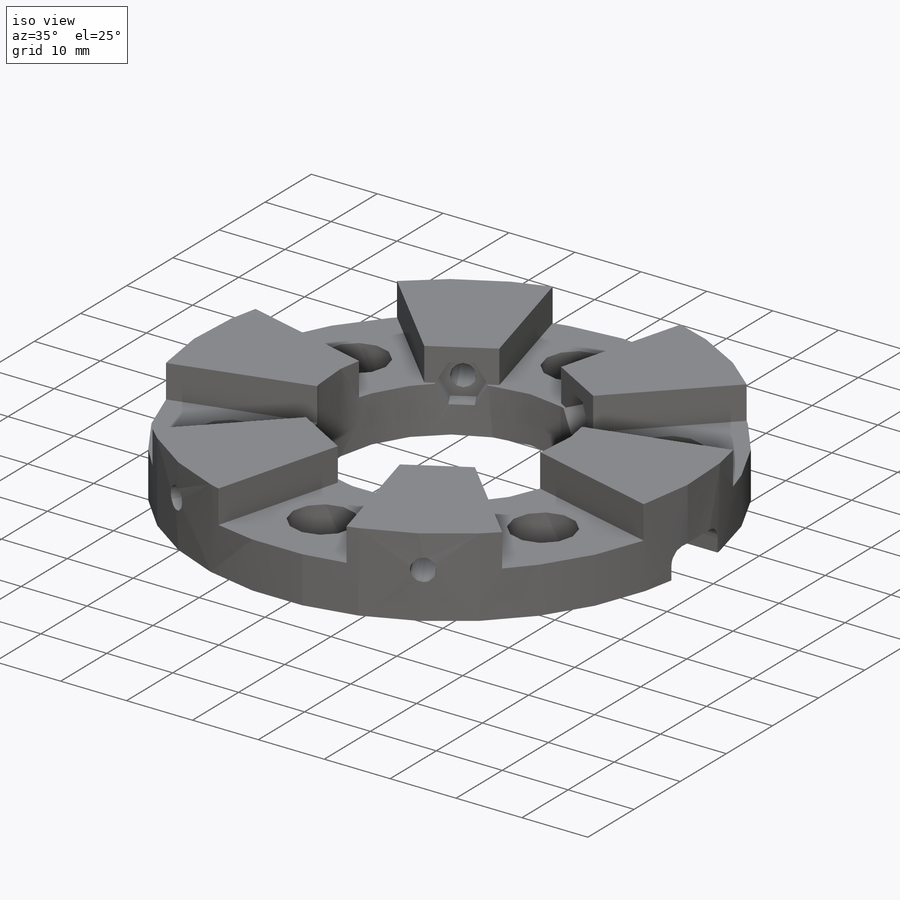
[diagram: iso view]
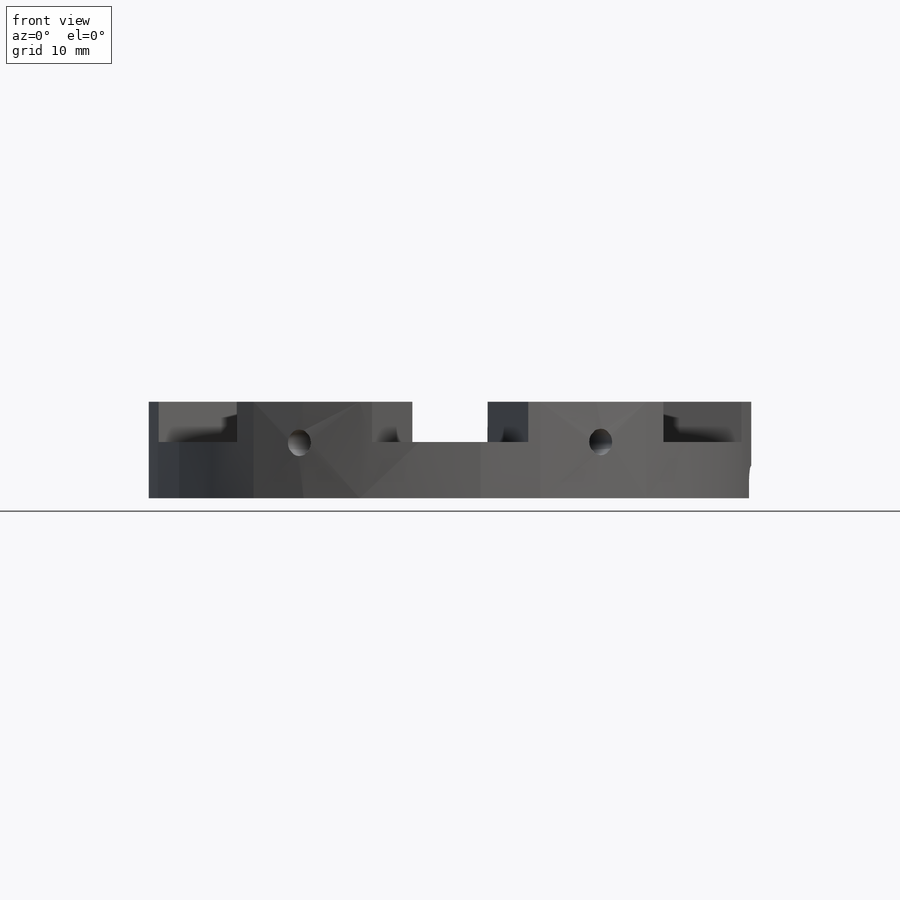
[diagram: front view]
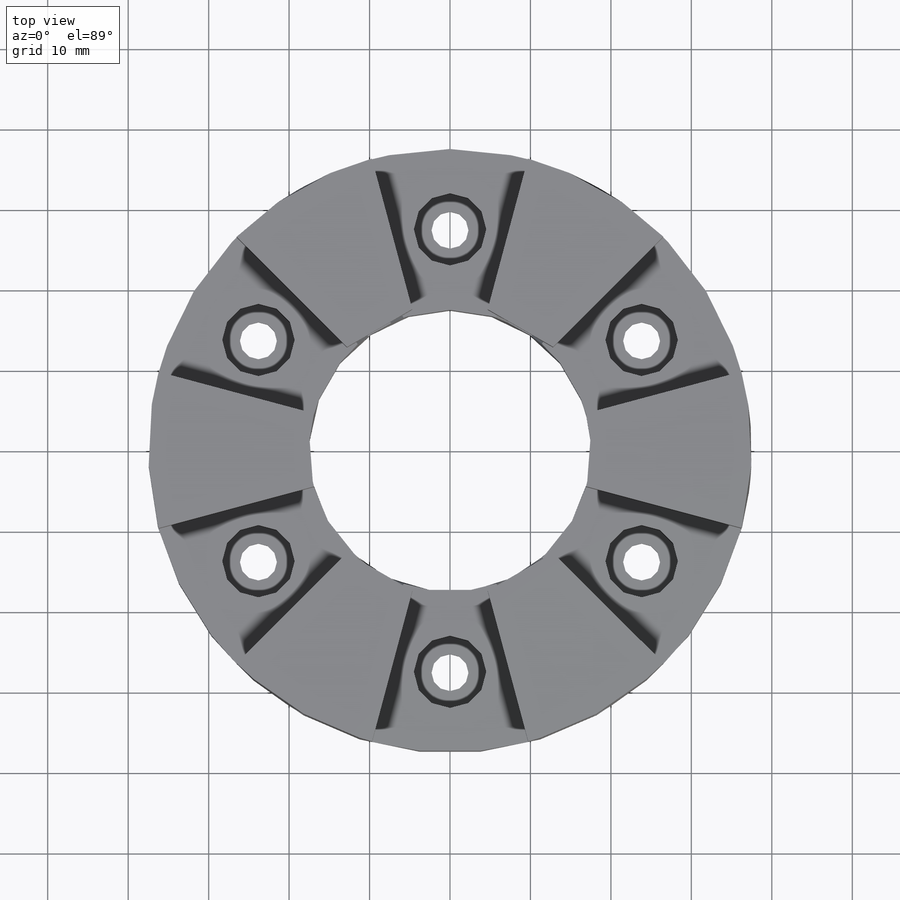
[diagram: top view]
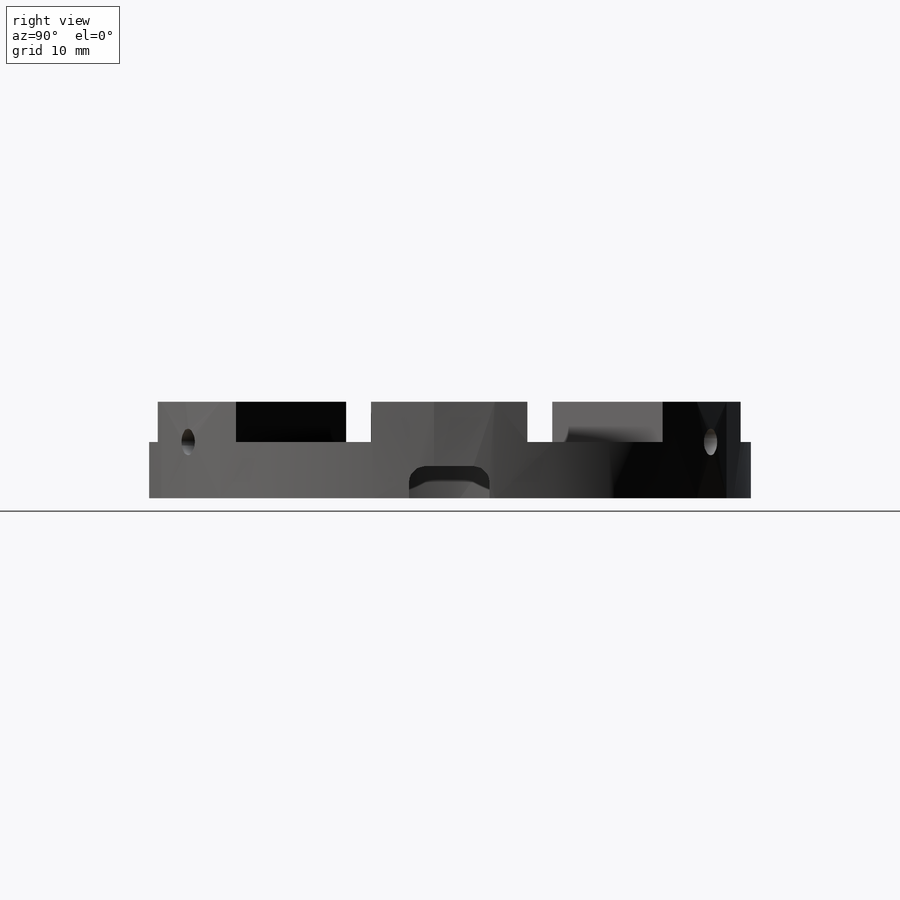
[diagram: right view]
SOLIDWORKS PART (.sldprt)
format: sldprt  version: not decoded by parser v0  size: 543,232 bytes
history: native  units: mm
features: sketch x13, cut_extrude x10, extrude x3, material x1, fillet x1 (+13 scaffold rows collapsed)
feature tree (41):
  scaffold x13  (default folders/planes/origin — collapsed)
  material  "Material <not specified>"
  sketch  "Sketch1"  dims[D1=75.0mm D2=4.6mm D3=27.5mm D5=13.75mm D6=~23.815699mm D7=~23.815699mm D4=6.0]
  extrude  "Boss-Extrude1"  Depth=2mm
  sketch  "Sketch2"  dims[c1.D1=9.0mm c1.D3=75.0mm c1.D4=9.0mm c2.D3=13.75mm c2.D2=6.0]
  extrude  "Boss-Extrude2"  Depth=5mm
  sketch  "Sketch3"  dims[c1.D1=75.0mm c1.D2=~35.421013mm c1.D3=~21.309436mm c1.D4=17.5mm c2.D3=20.0mm c3.D3=~1.426992deg c4.D3=~20.041747mm c5.D3=~0.673205deg c6.D3=~20.041747mm c7.D3=~179.326795deg c8.D3=1.0mm c8.D4=1.0mm c8.D5=37.5mm c9.D5=~163.466378deg c10.D5=37.5mm c11.D5=~26.978349deg c12.D5=~35.949484mm c13.D5=30.0deg c13.D2=6.0]
  extrude  "Boss-Extrude3"  Depth=5mm
  sketch  "Sketch4"
  cut_extrude  "Cut-Extrude1"  Depth=7mm
  sketch  "Sketch5"  dims[D1=3.0mm D3=5.7mm D2=5.0mm]
  cut_extrude  "Cut-Extrude2"  Depth=2.5mm
  sketch  "Sketch7"  dims[D1=5.7mm D2=5.0mm]
  cut_extrude  "Cut-Extrude4"  Depth=2.5mm
  sketch  "Sketch10"  dims[D1=3.3mm D2=2.85mm D3=2.85mm D4=5.0mm]
  cut_extrude  "Cut-Extrude7"  Depth=20mm
  sketch  "Sketch9"  dims[D1=3.3mm D2=2.75mm]
  cut_extrude  "Cut-Extrude6"  Depth=20mm
  sketch  "Sketch14"  dims[c1.D2=75.0mm c1.D3=35.0mm c1.D1=5.0mm c1.D4=5.0mm c1.D5=~20.394662mm c2.D1=~32.230327mm c3.D1=90.0deg c3.D4=5.0mm c3.D5=5.0mm]
  cut_extrude  "Cut-Extrude8"  Depth=4mm
  sketch  "Sketch15"  dims[c1.D2=~5.196152mm c1.D1=5.7mm c2.D2=3.0mm c2.D1=3.0mm]
  cut_extrude  "Cut-Extrude9"  Depth=2.5mm
  sketch  "Sketch16"  dims[D2=3.3mm D1=2.85mm D3=2.85mm]
  cut_extrude  "Cut-Extrude10"  Depth=20mm
  sketch  "Sketch17"  dims[D1=5.7mm]
  cut_extrude  "Cut-Extrude11"  Depth=2.5mm
  sketch  "Sketch18"  dims[D1=3.3mm D2=2.85mm D3=2.85mm]
  cut_extrude  "Cut-Extrude12"  Depth=20mm
  fillet  "Fillet1"  Radius=2mm
decode coverage: 26 of 27 modeling features carry decoded parameters
note: ~ marks probable driven/reference dimensions
note: suppression state not decoded; provenance and decode notes live in map.json
